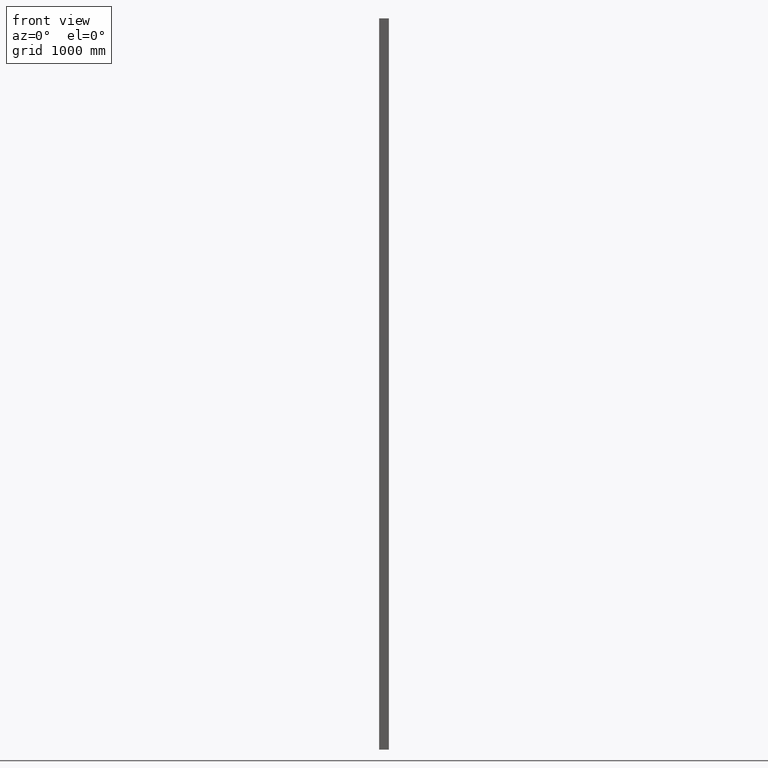
[diagram: clean part render]
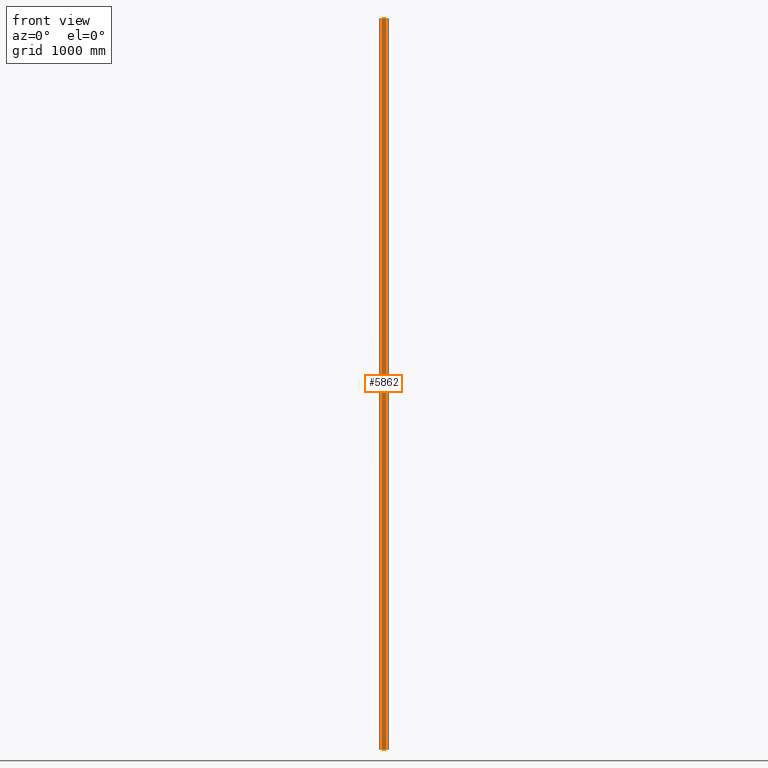
[diagram: same view with one face highlighted and labeled with its STEP entity id]
A machine part, front view. The second image highlights one B-rep face of the part: STEP entity #5862.
In plain terms, the highlighted planar face has unit normal (0, -1, 0).
Its self-contained STEP definition (entity closure, byte-faithful):
#623 = CARTESIAN_POINT ( 'NONE',  ( -16.00000000000000000, -40.00000000000000000, -3000.000000000000000 ) ) ;
#624 = DIRECTION ( 'NONE',  ( 0.0000000000000000000, 0.0000000000000000000, -1.000000000000000000 ) ) ;
#629 = CARTESIAN_POINT ( 'NONE',  ( 16.00000000000000000, -40.00000000000000000, -3000.000000000000000 ) ) ;
#630 = DIRECTION ( 'NONE',  ( -0.0000000000000000000, -0.0000000000000000000, 1.000000000000000000 ) ) ;
#685 = ORIENTED_EDGE ( 'NONE', *, *, #6186, .F. ) ;
#686 = ORIENTED_EDGE ( 'NONE', *, *, #1823, .T. ) ;
#687 = ORIENTED_EDGE ( 'NONE', *, *, #6187, .T. ) ;
#688 = ORIENTED_EDGE ( 'NONE', *, *, #1820, .T. ) ;
#1150 = PLANE ( 'NONE',  #4136 ) ;
#1151 = CARTESIAN_POINT ( 'NONE',  ( -16.00000000000000000, -40.00000000000000000, 0.0000000000000000000 ) ) ;
#1152 = DIRECTION ( 'NONE',  ( 0.0000000000000000000, -1.000000000000000000, 0.0000000000000000000 ) ) ;
#1153 = DIRECTION ( 'NONE',  ( 0.0000000000000000000, 0.0000000000000000000, -1.000000000000000000 ) ) ;
#1398 = CARTESIAN_POINT ( 'NONE',  ( 40.00000000000000000, -40.00000000000000000, -6000.000000000000000 ) ) ;
#1399 = DIRECTION ( 'NONE',  ( -1.000000000000000000, 0.0000000000000000000, 0.0000000000000000000 ) ) ;
#1400 = CARTESIAN_POINT ( 'NONE',  ( -16.00000000000000000, -40.00000000000000000, 0.0000000000000000000 ) ) ;
#1401 = DIRECTION ( 'NONE',  ( -1.000000000000000000, -0.0000000000000000000, -0.0000000000000000000 ) ) ;
#1820 = EDGE_CURVE ( 'NONE', #3179, #3178, #3409, .T. ) ;
#1823 = EDGE_CURVE ( 'NONE', #3177, #3176, #3415, .T. ) ;
#1994 = EDGE_LOOP ( 'NONE', ( #685, #686, #687, #688 ) ) ;
#3176 = VERTEX_POINT ( 'NONE', #3465 ) ;
#3177 = VERTEX_POINT ( 'NONE', #3466 ) ;
#3178 = VERTEX_POINT ( 'NONE', #3467 ) ;
#3179 = VERTEX_POINT ( 'NONE', #3468 ) ;
#3409 = LINE ( 'NONE', #623, #3410 ) ;
#3410 = VECTOR ( 'NONE', #624, 1000.000000000000000 ) ;
#3415 = LINE ( 'NONE', #629, #3416 ) ;
#3416 = VECTOR ( 'NONE', #630, 1000.000000000000000 ) ;
#3465 = CARTESIAN_POINT ( 'NONE',  ( 16.00000000000000000, -40.00000000000000000, 0.0000000000000000000 ) ) ;
#3466 = CARTESIAN_POINT ( 'NONE',  ( 16.00000000000000000, -40.00000000000000000, -6000.000000000000000 ) ) ;
#3467 = CARTESIAN_POINT ( 'NONE',  ( -16.00000000000000000, -40.00000000000000000, -6000.000000000000000 ) ) ;
#3468 = CARTESIAN_POINT ( 'NONE',  ( -16.00000000000000000, -40.00000000000000000, 0.0000000000000000000 ) ) ;
#4136 = AXIS2_PLACEMENT_3D ( 'NONE', #1151, #1152, #1153 ) ;
#5137 = FACE_OUTER_BOUND ( 'NONE', #1994, .T. ) ;
#5301 = LINE ( 'NONE', #1398, #5302 ) ;
#5302 = VECTOR ( 'NONE', #1399, 1000.000000000000000 ) ;
#5303 = LINE ( 'NONE', #1400, #5304 ) ;
#5304 = VECTOR ( 'NONE', #1401, 1000.000000000000000 ) ;
#5862 = ADVANCED_FACE ( 'NONE', ( #5137 ), #1150, .T. ) ;
#6186 = EDGE_CURVE ( 'NONE', #3177, #3178, #5301, .T. ) ;
#6187 = EDGE_CURVE ( 'NONE', #3176, #3179, #5303, .T. ) ;